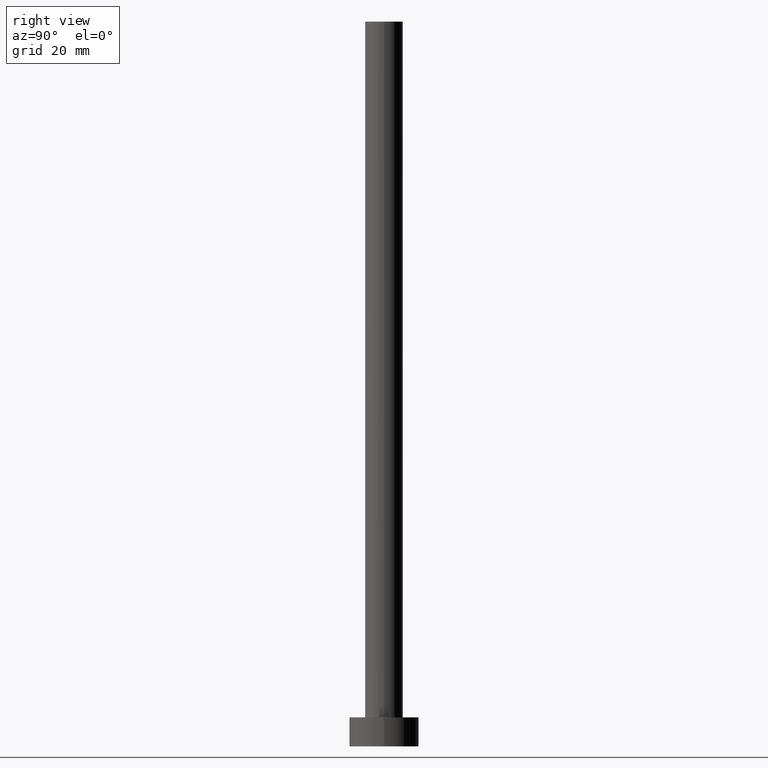
[diagram: clean part render]
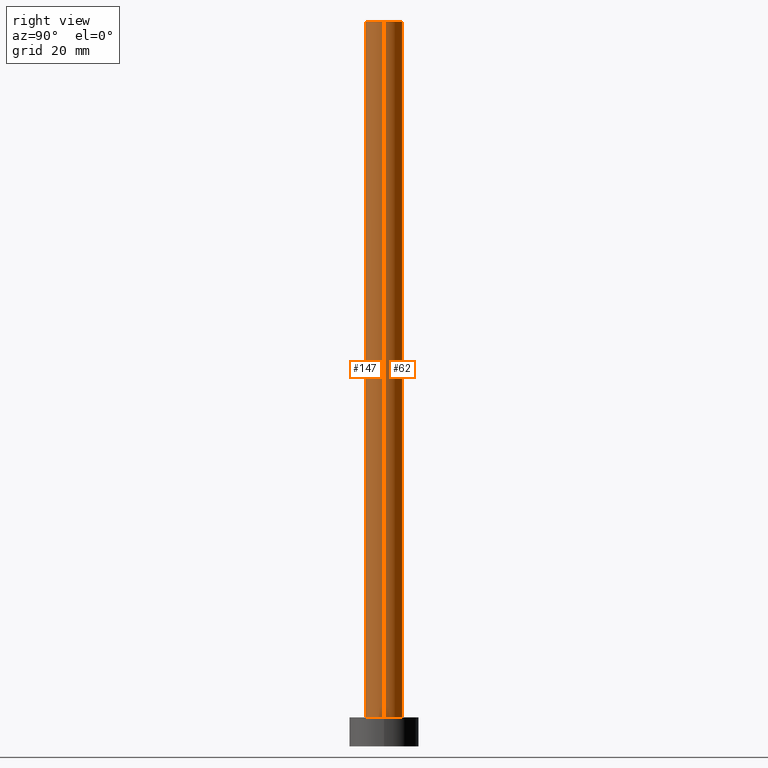
[diagram: same view with one multi-face feature highlighted, each face labeled with its STEP entity id]
A machine part, right view. The highlighted faces form ONE feature: a constant-radius fillet chain: 2 tangent blend faces with common blend radius 3.25 mm. The faces share edges in the B-rep.
Their STEP definitions:
[1] entity #62 (Cylinder):
#11 = ORIENTED_EDGE ( 'NONE', *, *, #173, .F. ) ;
#13 = EDGE_CURVE ( 'NONE', #145, #68, #168, .T. ) ;
#15 = EDGE_CURVE ( 'NONE', #145, #221, #131, .T. ) ;
#18 = DIRECTION ( 'NONE',  ( 1.000000000000000000, 0.000000000000000000, 0.000000000000000000 ) ) ;
#22 = AXIS2_PLACEMENT_3D ( 'NONE', #115, #197, #54 ) ;
#36 = CARTESIAN_POINT ( 'NONE',  ( -3.250000000000000444, 0.000000000000000000, 125.0000000000000000 ) ) ;
#38 = DIRECTION ( 'NONE',  ( 0.000000000000000000, 0.000000000000000000, 1.000000000000000000 ) ) ;
#45 = CARTESIAN_POINT ( 'NONE',  ( 0.000000000000000000, 0.000000000000000000, 125.0000000000000000 ) ) ;
#46 = CARTESIAN_POINT ( 'NONE',  ( 3.250000000000000444, 3.980102097228898231E-16, 125.0000000000000000 ) ) ;
#54 = DIRECTION ( 'NONE',  ( -1.000000000000000000, 0.000000000000000000, 0.000000000000000000 ) ) ;
#56 = CARTESIAN_POINT ( 'NONE',  ( -3.250000000000000444, 0.000000000000000000, 125.0000000000000000 ) ) ;
#60 = CYLINDRICAL_SURFACE ( 'NONE', #22, 3.250000000000000444 ) ;
#62 = ADVANCED_FACE ( 'NONE', ( #229 ), #60, .T. ) ;
#68 = VERTEX_POINT ( 'NONE', #36 ) ;
#72 = ORIENTED_EDGE ( 'NONE', *, *, #15, .T. ) ;
#80 = AXIS2_PLACEMENT_3D ( 'NONE', #112, #38, #18 ) ;
#101 = CARTESIAN_POINT ( 'NONE',  ( 3.250000000000000444, 3.980102097228898231E-16, 125.0000000000000000 ) ) ;
#112 = CARTESIAN_POINT ( 'NONE',  ( 0.000000000000000000, 0.000000000000000000, 5.000000000000000000 ) ) ;
#115 = CARTESIAN_POINT ( 'NONE',  ( 0.000000000000000000, 0.000000000000000000, 125.0000000000000000 ) ) ;
#116 = CARTESIAN_POINT ( 'NONE',  ( -3.250000000000000444, 0.000000000000000000, 5.000000000000000000 ) ) ;
#131 = LINE ( 'NONE', #46, #138 ) ;
#138 = VECTOR ( 'NONE', #208, 1000.000000000000000 ) ;
#142 = ORIENTED_EDGE ( 'NONE', *, *, #13, .F. ) ;
#145 = VERTEX_POINT ( 'NONE', #101 ) ;
#146 = DIRECTION ( 'NONE',  ( 0.000000000000000000, 0.000000000000000000, 1.000000000000000000 ) ) ;
#153 = LINE ( 'NONE', #56, #156 ) ;
#156 = VECTOR ( 'NONE', #213, 1000.000000000000000 ) ;
#161 = AXIS2_PLACEMENT_3D ( 'NONE', #45, #146, #223 ) ;
#168 = CIRCLE ( 'NONE', #161, 3.250000000000000444 ) ;
#172 = CARTESIAN_POINT ( 'NONE',  ( 3.250000000000000444, 3.980102097228898231E-16, 5.000000000000000000 ) ) ;
#173 = EDGE_CURVE ( 'NONE', #68, #190, #153, .T. ) ;
#178 = EDGE_CURVE ( 'NONE', #221, #190, #192, .T. ) ;
#190 = VERTEX_POINT ( 'NONE', #116 ) ;
#192 = CIRCLE ( 'NONE', #80, 3.250000000000000444 ) ;
#197 = DIRECTION ( 'NONE',  ( -0.000000000000000000, -0.000000000000000000, -1.000000000000000000 ) ) ;
#208 = DIRECTION ( 'NONE',  ( -0.000000000000000000, -0.000000000000000000, -1.000000000000000000 ) ) ;
#210 = ORIENTED_EDGE ( 'NONE', *, *, #178, .T. ) ;
#213 = DIRECTION ( 'NONE',  ( -0.000000000000000000, -0.000000000000000000, -1.000000000000000000 ) ) ;
#221 = VERTEX_POINT ( 'NONE', #172 ) ;
#223 = DIRECTION ( 'NONE',  ( 1.000000000000000000, 0.000000000000000000, 0.000000000000000000 ) ) ;
#229 = FACE_OUTER_BOUND ( 'NONE', #245, .T. ) ;
#245 = EDGE_LOOP ( 'NONE', ( #142, #72, #210, #11 ) ) ;
[2] entity #147 (Cylinder):
#3 = DIRECTION ( 'NONE',  ( -1.000000000000000000, 0.000000000000000000, 0.000000000000000000 ) ) ;
#10 = ORIENTED_EDGE ( 'NONE', *, *, #173, .T. ) ;
#15 = EDGE_CURVE ( 'NONE', #145, #221, #131, .T. ) ;
#25 = ORIENTED_EDGE ( 'NONE', *, *, #191, .F. ) ;
#28 = ORIENTED_EDGE ( 'NONE', *, *, #15, .F. ) ;
#36 = CARTESIAN_POINT ( 'NONE',  ( -3.250000000000000444, 0.000000000000000000, 125.0000000000000000 ) ) ;
#40 = DIRECTION ( 'NONE',  ( -0.000000000000000000, -0.000000000000000000, -1.000000000000000000 ) ) ;
#46 = CARTESIAN_POINT ( 'NONE',  ( 3.250000000000000444, 3.980102097228898231E-16, 125.0000000000000000 ) ) ;
#56 = CARTESIAN_POINT ( 'NONE',  ( -3.250000000000000444, 0.000000000000000000, 125.0000000000000000 ) ) ;
#57 = DIRECTION ( 'NONE',  ( 1.000000000000000000, 0.000000000000000000, 0.000000000000000000 ) ) ;
#68 = VERTEX_POINT ( 'NONE', #36 ) ;
#77 = DIRECTION ( 'NONE',  ( 0.000000000000000000, 0.000000000000000000, 1.000000000000000000 ) ) ;
#98 = CARTESIAN_POINT ( 'NONE',  ( 0.000000000000000000, 0.000000000000000000, 125.0000000000000000 ) ) ;
#101 = CARTESIAN_POINT ( 'NONE',  ( 3.250000000000000444, 3.980102097228898231E-16, 125.0000000000000000 ) ) ;
#109 = ORIENTED_EDGE ( 'NONE', *, *, #166, .T. ) ;
#111 = AXIS2_PLACEMENT_3D ( 'NONE', #98, #77, #57 ) ;
#116 = CARTESIAN_POINT ( 'NONE',  ( -3.250000000000000444, 0.000000000000000000, 5.000000000000000000 ) ) ;
#119 = DIRECTION ( 'NONE',  ( 0.000000000000000000, 0.000000000000000000, 1.000000000000000000 ) ) ;
#121 = AXIS2_PLACEMENT_3D ( 'NONE', #177, #119, #201 ) ;
#131 = LINE ( 'NONE', #46, #138 ) ;
#135 = CIRCLE ( 'NONE', #121, 3.250000000000000444 ) ;
#138 = VECTOR ( 'NONE', #208, 1000.000000000000000 ) ;
#140 = FACE_OUTER_BOUND ( 'NONE', #180, .T. ) ;
#145 = VERTEX_POINT ( 'NONE', #101 ) ;
#147 = ADVANCED_FACE ( 'NONE', ( #140 ), #214, .T. ) ;
#153 = LINE ( 'NONE', #56, #156 ) ;
#156 = VECTOR ( 'NONE', #213, 1000.000000000000000 ) ;
#166 = EDGE_CURVE ( 'NONE', #190, #221, #135, .T. ) ;
#172 = CARTESIAN_POINT ( 'NONE',  ( 3.250000000000000444, 3.980102097228898231E-16, 5.000000000000000000 ) ) ;
#173 = EDGE_CURVE ( 'NONE', #68, #190, #153, .T. ) ;
#177 = CARTESIAN_POINT ( 'NONE',  ( 0.000000000000000000, 0.000000000000000000, 5.000000000000000000 ) ) ;
#180 = EDGE_LOOP ( 'NONE', ( #28, #25, #10, #109 ) ) ;
#190 = VERTEX_POINT ( 'NONE', #116 ) ;
#191 = EDGE_CURVE ( 'NONE', #68, #145, #218, .T. ) ;
#201 = DIRECTION ( 'NONE',  ( 1.000000000000000000, 0.000000000000000000, 0.000000000000000000 ) ) ;
#208 = DIRECTION ( 'NONE',  ( -0.000000000000000000, -0.000000000000000000, -1.000000000000000000 ) ) ;
#213 = DIRECTION ( 'NONE',  ( -0.000000000000000000, -0.000000000000000000, -1.000000000000000000 ) ) ;
#214 = CYLINDRICAL_SURFACE ( 'NONE', #235, 3.250000000000000444 ) ;
#218 = CIRCLE ( 'NONE', #111, 3.250000000000000444 ) ;
#221 = VERTEX_POINT ( 'NONE', #172 ) ;
#235 = AXIS2_PLACEMENT_3D ( 'NONE', #240, #40, #3 ) ;
#240 = CARTESIAN_POINT ( 'NONE',  ( 0.000000000000000000, 0.000000000000000000, 125.0000000000000000 ) ) ;